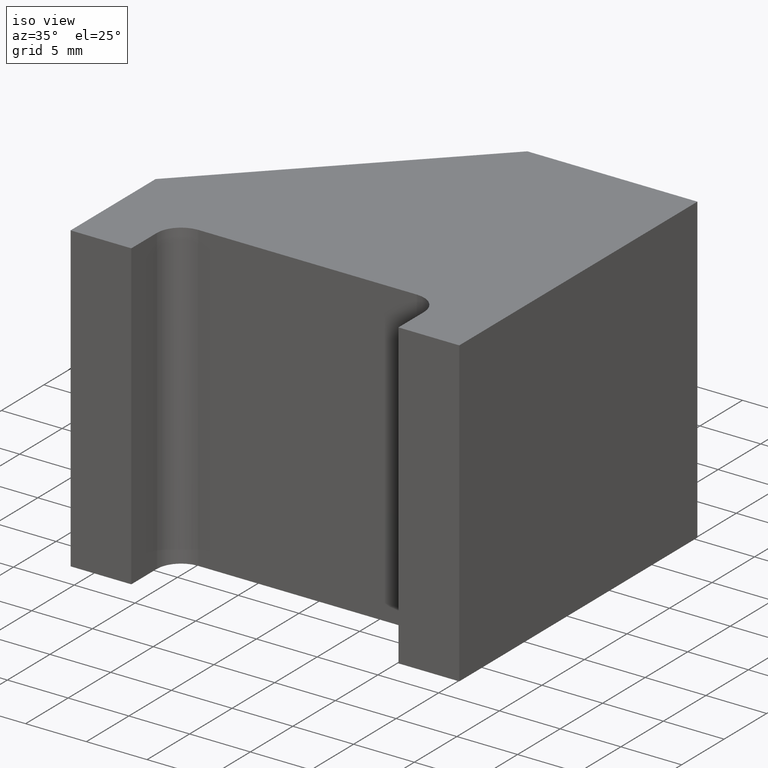
[diagram: clean part render]
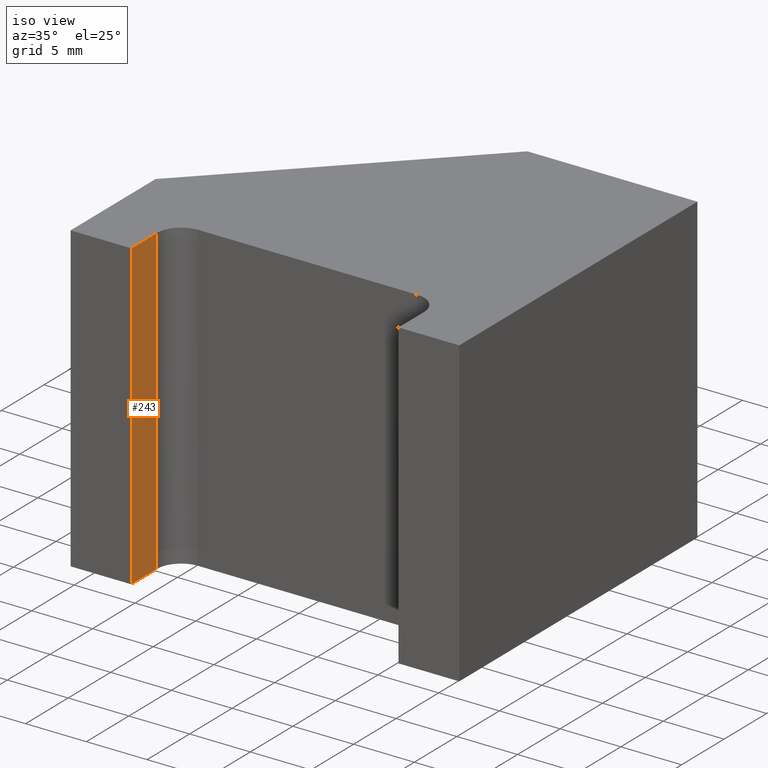
[diagram: same view with one face highlighted and labeled with its STEP entity id]
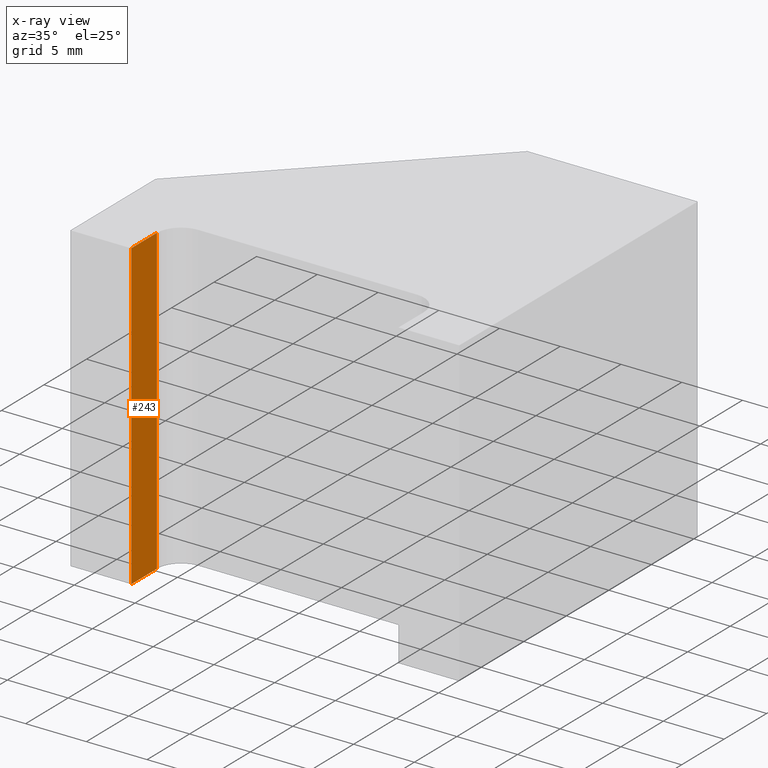
[diagram: x-ray of the same camera — body ghosted, the highlighted face saturated]
A machine part, iso view. The second image highlights one B-rep face of the part: STEP entity #243.
The next image is the same camera in x-ray: the body ghosted, the highlighted face saturated — about 0% of this face is hidden behind the body in this view.
In plain terms, the highlighted planar face has unit normal (1, 0, 0).
Its self-contained STEP definition (entity closure, byte-faithful):
#23=FACE_OUTER_BOUND('',#36,.T.);
#36=EDGE_LOOP('',(#188,#189,#190,#191));
#52=LINE('',#372,#81);
#63=LINE('',#397,#92);
#64=LINE('',#400,#93);
#65=LINE('',#401,#94);
#81=VECTOR('',#303,10.);
#92=VECTOR('',#326,10.);
#93=VECTOR('',#329,10.);
#94=VECTOR('',#330,10.);
#112=VERTEX_POINT('',#369);
#113=VERTEX_POINT('',#371);
#121=VERTEX_POINT('',#395);
#122=VERTEX_POINT('',#399);
#134=EDGE_CURVE('',#113,#112,#52,.T.);
#147=EDGE_CURVE('',#121,#112,#63,.T.);
#148=EDGE_CURVE('',#121,#122,#64,.T.);
#149=EDGE_CURVE('',#122,#113,#65,.T.);
#188=ORIENTED_EDGE('',*,*,#148,.T.);
#189=ORIENTED_EDGE('',*,*,#149,.T.);
#190=ORIENTED_EDGE('',*,*,#134,.T.);
#191=ORIENTED_EDGE('',*,*,#147,.F.);
#230=PLANE('',#283);
#243=ADVANCED_FACE('',(#23),#230,.T.);
#283=AXIS2_PLACEMENT_3D('',#398,#327,#328);
#303=DIRECTION('',(0.,1.,0.));
#326=DIRECTION('',(0.,0.,-1.));
#327=DIRECTION('center_axis',(1.,0.,0.));
#328=DIRECTION('ref_axis',(0.,0.,-1.));
#329=DIRECTION('',(0.,-1.,0.));
#330=DIRECTION('',(0.,0.,-1.));
#369=CARTESIAN_POINT('',(-11.,-11.,-12.5));
#371=CARTESIAN_POINT('',(-11.,-14.,-12.5));
#372=CARTESIAN_POINT('',(-11.,-11.,-12.5));
#395=CARTESIAN_POINT('',(-11.,-11.,12.5));
#397=CARTESIAN_POINT('',(-11.,-11.,0.));
#398=CARTESIAN_POINT('Origin',(-11.,-11.,0.));
#399=CARTESIAN_POINT('',(-11.,-14.,12.5));
#400=CARTESIAN_POINT('',(-11.,-11.,12.5));
#401=CARTESIAN_POINT('',(-11.,-14.,0.));